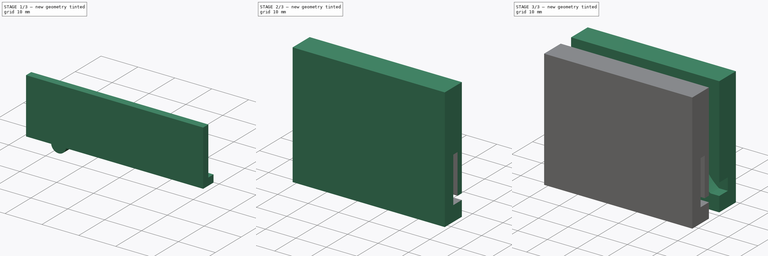
[diagram: build sequence overview — one tinted view per stage of 3, left to right]
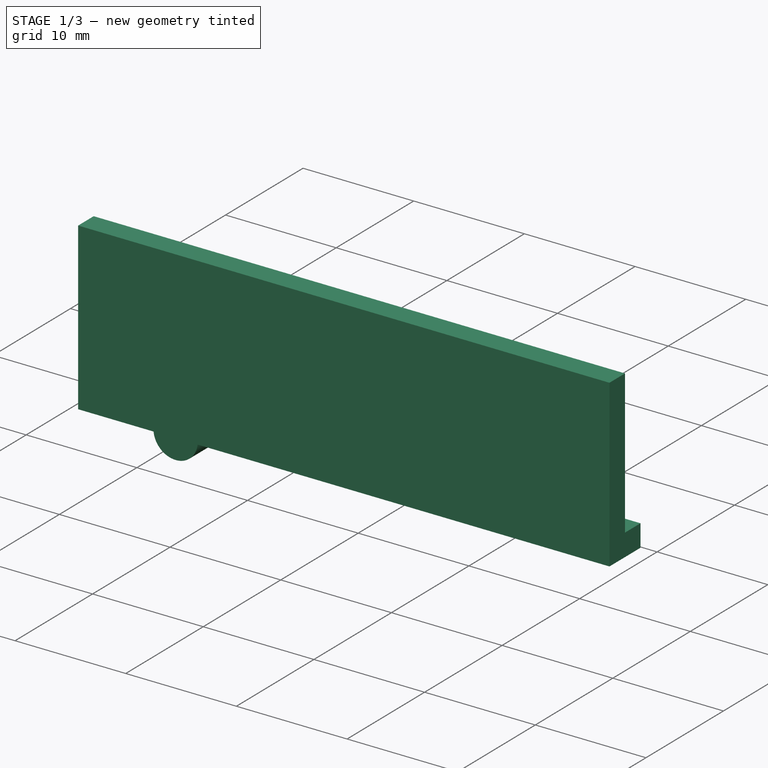
[diagram: stage 1 of 3 — iso view after this stage's code; geometry added in this stage tinted green]
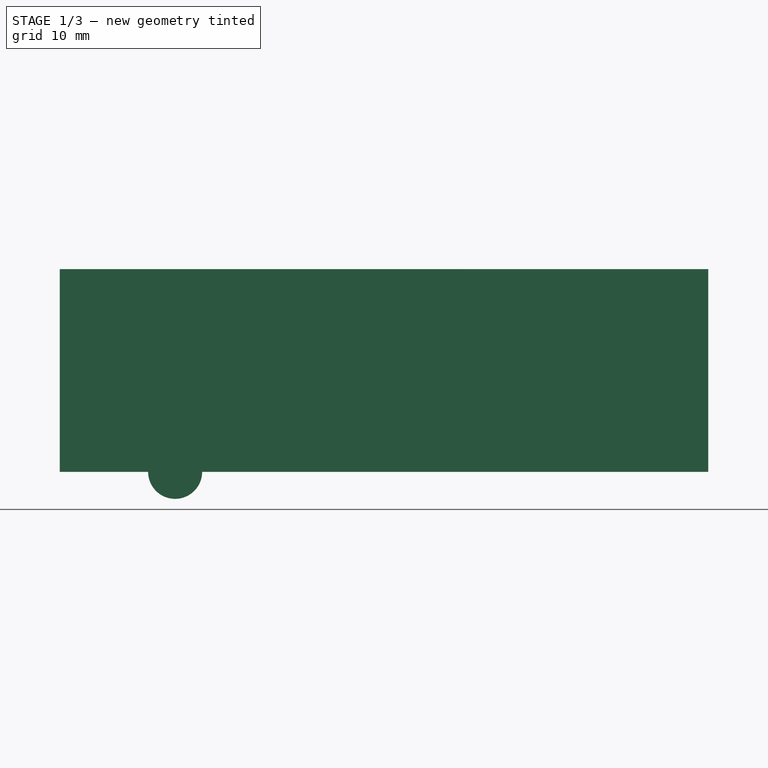
[diagram: stage 1 of 3 — front view after this stage's code; geometry added in this stage tinted green]
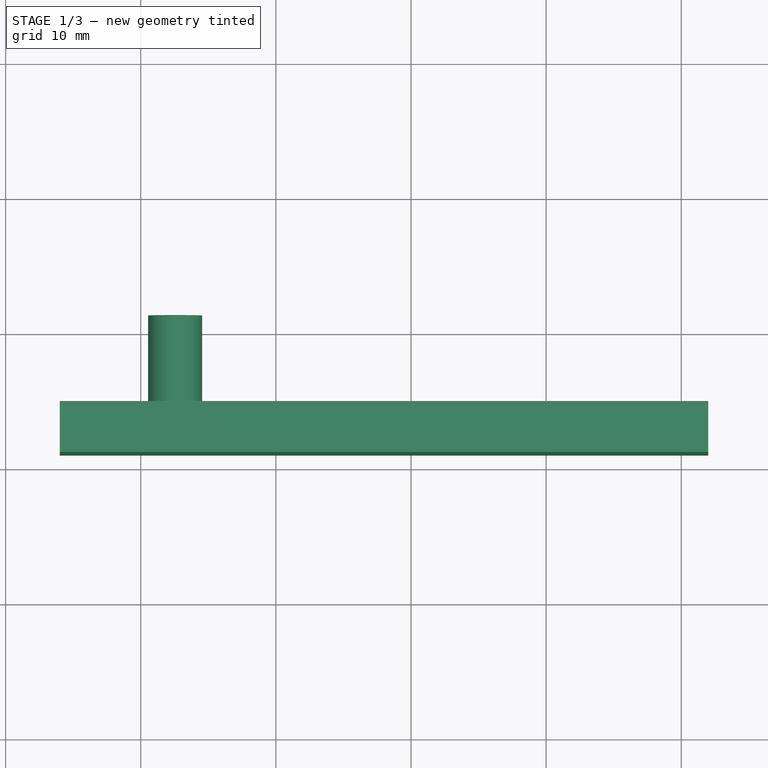
[diagram: stage 1 of 3 — top view after this stage's code; geometry added in this stage tinted green]
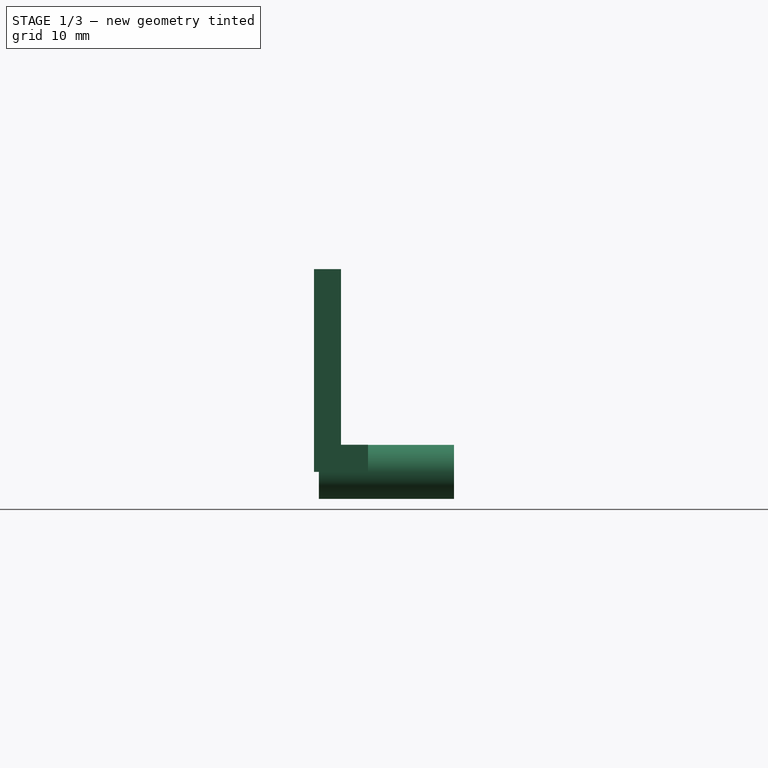
[diagram: stage 1 of 3 — right view after this stage's code; geometry added in this stage tinted green]
FCSTD DOCUMENT  (FreeCAD 0.14R$WCREV$)
Label: track
License: CC-BY 3.0
LicenseURL: http://creativecommons.org/licenses/by/3.0/
objects: Part::Feature×5, Sketcher::SketchObject×2, Part::Cut×2, Part::Sweep×1, Part::Box×1, Part::FeaturePython×1, Part::Extrusion×1, Part::Cylinder×1
note: 14 computed .brp shape members not serialized (recipe doc carries the construction recipe); baked Part::Feature solids carry a one-line shape summary decoded from their .brp

FEATURE [Part::Feature] Part__Feature  label="Pad003"
  Placement = pos=(0,0,0) rot=(0,0,1;1.5708rad)
  shape: bbox 8 x 4 x 15 mm, 8 faces (baked)
FEATURE [Part::Feature] Face
  Placement = pos=(0,0,0) rot=(0,0,1;1.5708rad)
  shape: bbox 2e-07 x 4 x 15 mm, 1 faces, 0 solids (baked)
FEATURE [Part::Extrusion] Extrusion
  Base = -> Face
  Dir = (48,0,0)
  Solid = false
FEATURE [Part::Cylinder] Cylinder
  Angle = 360
  Height = 10
  Placement = pos=(12.542,1.36795,0) rot=(1,0,0;1.5708rad)
  Radius = 2
FEATURE [Part::Feature] Part__Feature002  label="Array"
  Placement = pos=(11.6696,-8,0) rot=(0,0,1;1.5708rad)
  shape: bbox 29 x 19.75 x 77.3 mm, 33 faces (baked)
FEATURE [Part::Feature] Part__Feature003  label="Fusion"
  Placement = pos=(17,0,7) rot=(0,0,1;1.5708rad)
  shape: bbox 8 x 12.05 x 53.46 mm, 42 faces (baked)
FEATURE [Part::Feature] Part__Feature004  label="Array001"
  Placement = pos=(29,-8,0) rot=(0,0,1;1.5708rad)
  shape: bbox 29 x 19.75 x 72.3 mm, 33 faces (baked)
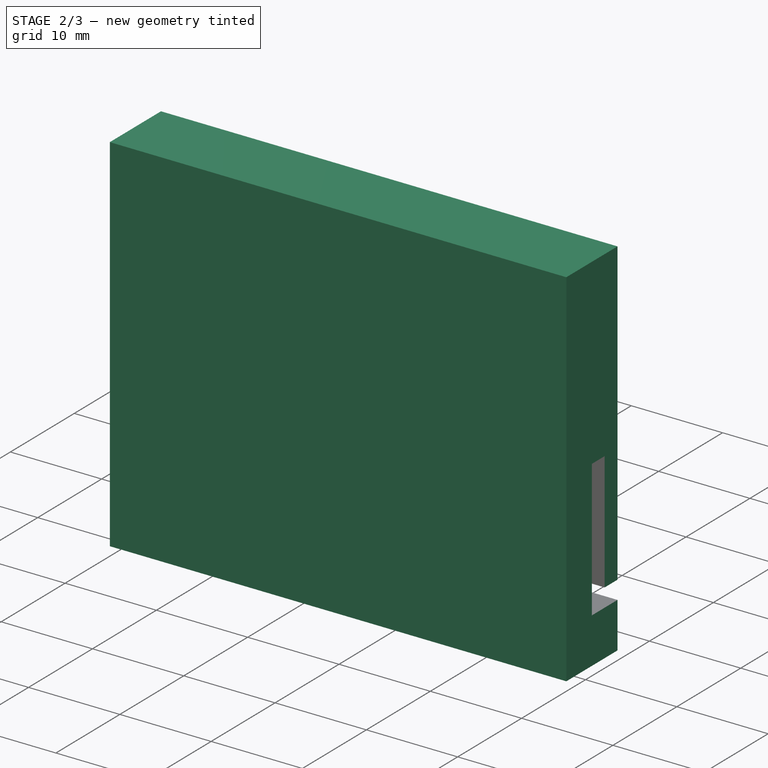
[diagram: stage 2 of 3 — iso view after this stage's code; geometry added in this stage tinted green]
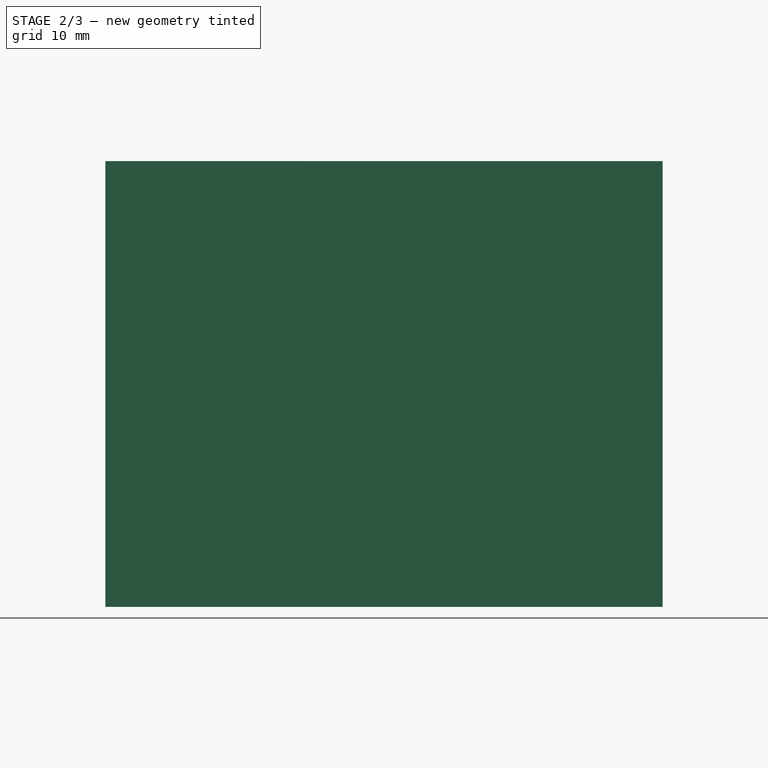
[diagram: stage 2 of 3 — front view after this stage's code; geometry added in this stage tinted green]
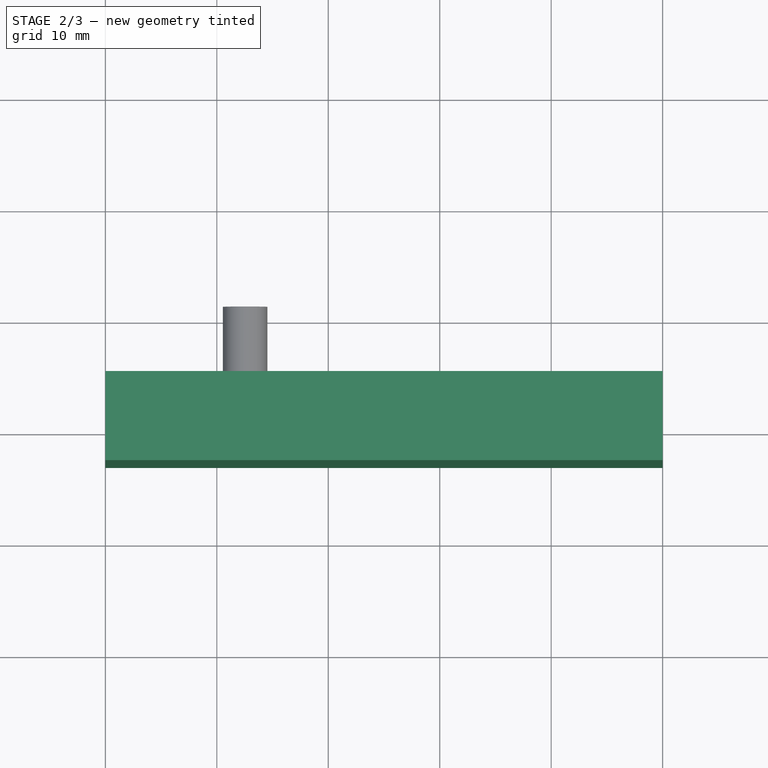
[diagram: stage 2 of 3 — top view after this stage's code; geometry added in this stage tinted green]
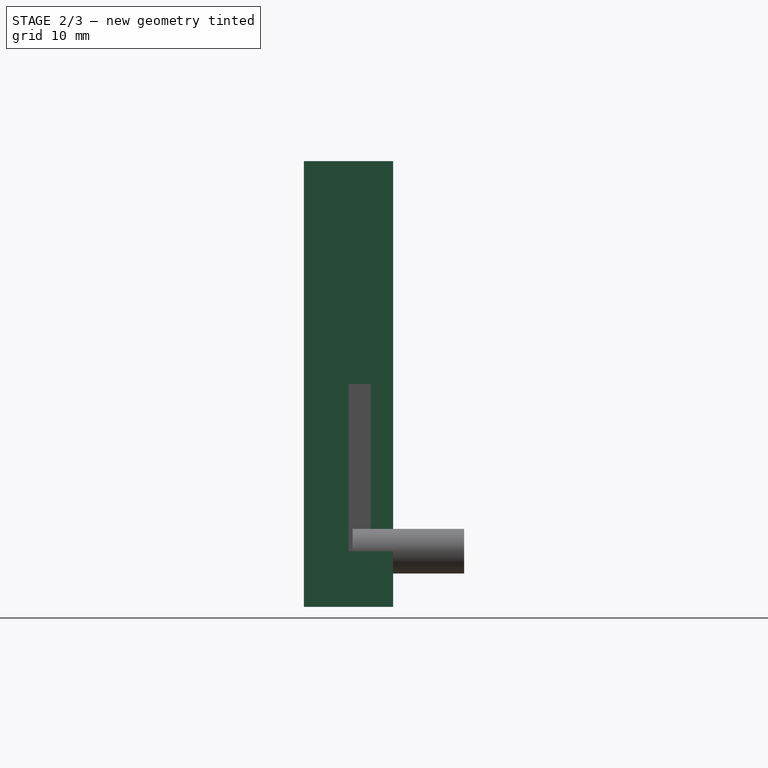
[diagram: stage 2 of 3 — right view after this stage's code; geometry added in this stage tinted green]
FEATURE [Part::Box] Box  label="Cube"
  Height = 40
  Length = 50
  Placement = pos=(0,0,-5) rot=(0,0,1;0rad)
  Width = 8
FEATURE [Part::FeaturePython] Clone  label="Clone of Cube"  # Draft clone (typed FeaturePython)
  Objects = -> [Box]
  Placement = pos=(0,-13,-5) rot=(0,0,1;0rad)
  Scale = (1,1,1)
FEATURE [Part::Cut] Cut001
  Base = -> Clone
  Tool = -> Extrusion
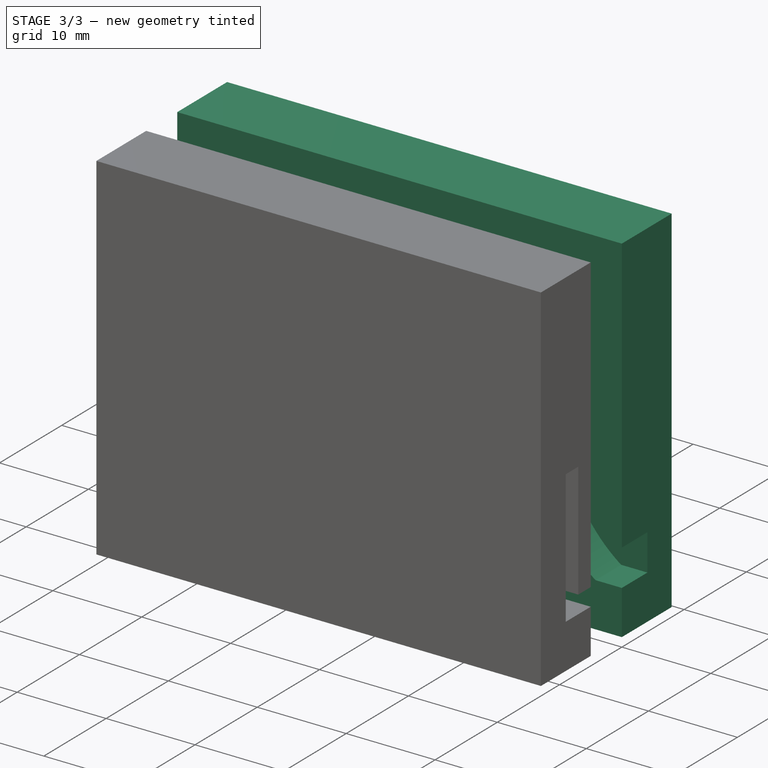
[diagram: stage 3 of 3 — iso view after this stage's code; geometry added in this stage tinted green]
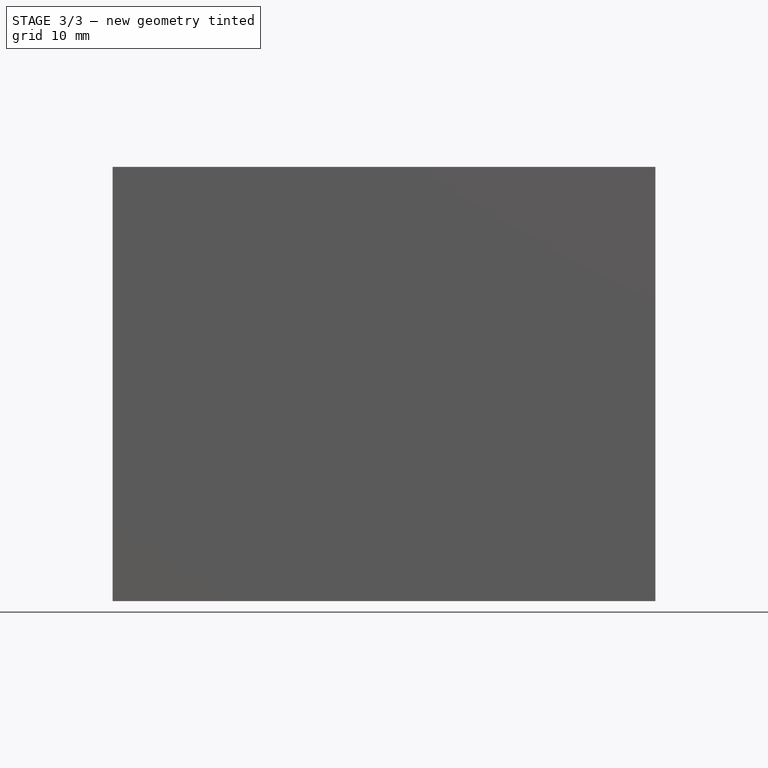
[diagram: stage 3 of 3 — front view after this stage's code; geometry added in this stage tinted green]
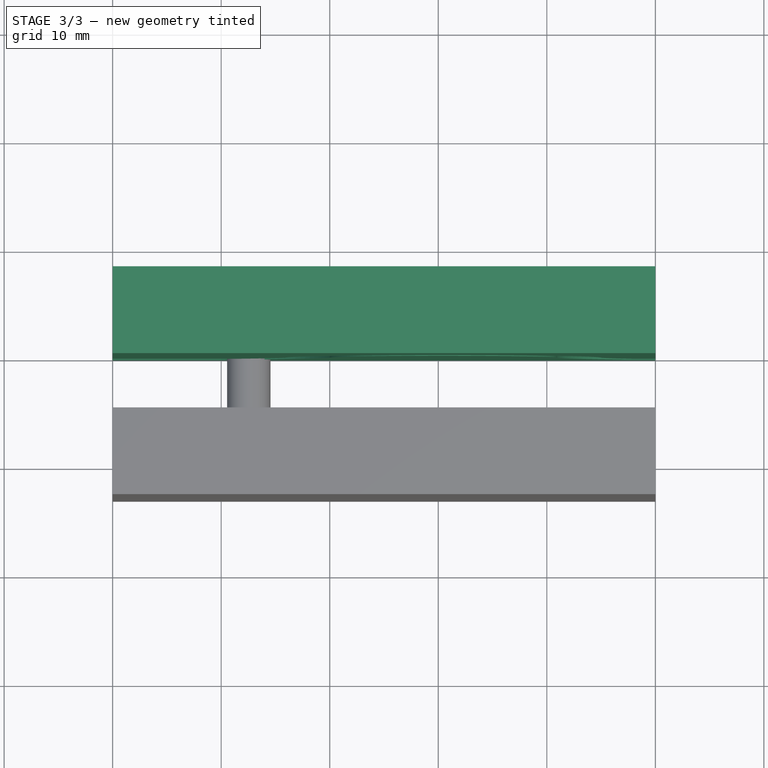
[diagram: stage 3 of 3 — top view after this stage's code; geometry added in this stage tinted green]
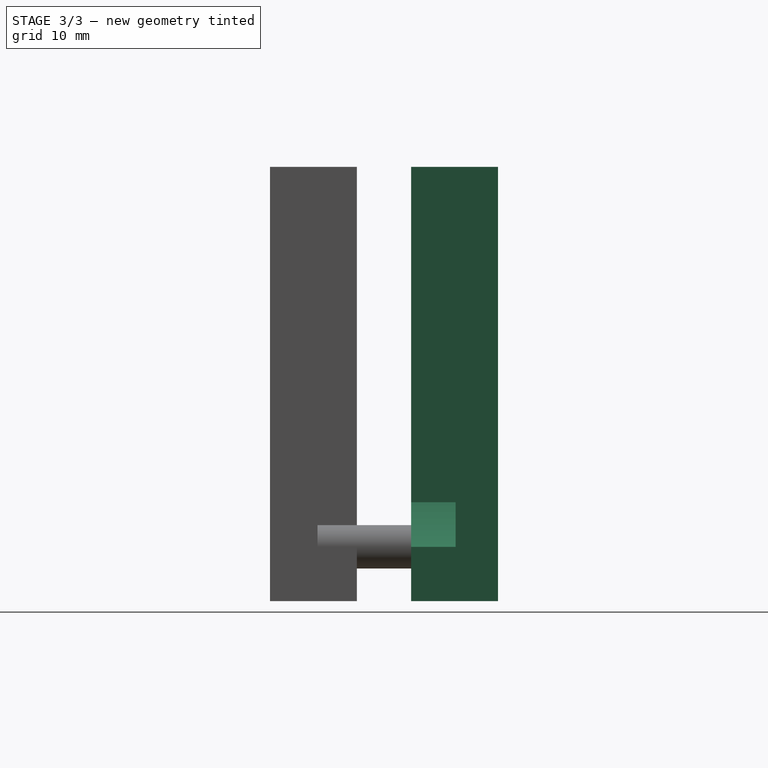
[diagram: stage 3 of 3 — right view after this stage's code; geometry added in this stage tinted green]
FEATURE [Sketcher::SketchObject] Sketch  label="Path"
  Placement = pos=(0,0,0) rot=(1,0,0;1.5708rad)
  sketch-geometry (5):
    g0: LineSegment StartX=0 StartY=0 StartZ=0 EndX=10 EndY=0 EndZ=0
    g1: LineSegment StartX=47.0491 StartY=0 StartZ=0 EndX=57.0491 EndY=0 EndZ=0
    g2: ArcOfCircle CenterX=5.64586 CenterY=14.3541 CenterZ=0 NormalX=0 NormalY=0 NormalZ=1 Radius=15 StartAngle=5.0069 EndAngle=5.98867
    g3: ArcOfCircle CenterX=55.7786 CenterY=12.1982 CenterZ=0 NormalX=0 NormalY=0 NormalZ=1 Radius=15 StartAngle=3.28867 EndAngle=4.09125
    g4: ArcOfCircle CenterX=30.4703 CenterY=10.1951 CenterZ=0 NormalX=0 NormalY=0 NormalZ=1 Radius=10.4721 StartAngle=6.26455 EndAngle=9.44341
  constraints (16):
    c: Horizontal(g0)
    c: Horizontal(g1)
    c: Coincident(g2,g0)
    c: Equal(g0,g1)
    c: Coincident(g3,g1)
    c: Coincident(g4,g2)
    c: Coincident(g3,g4)
    c: DistanceX(g0) = 10
    c: DistanceX(g0,g2) = 10
    c: Equal(g2,g3)
    c: Radius(g2) = 15
    c: DistanceY(g2,g3) = 0
    c: DistanceY(g0,g1) = 0
    c: DistanceY(g3,g1) = -10
    c: DistanceY(g-1,g0) = 0
    c: DistanceX(g-1,g0) = 0
FEATURE [Sketcher::SketchObject] Sketch001  label="pin-crossection"
  Placement = pos=(0,0,0) rot=(0.57735,0.57735,0.57735;2.0944rad)
  sketch-geometry (4):
    g0: LineSegment StartX=0 StartY=0 StartZ=0 EndX=4.1 EndY=0 EndZ=0
    g1: LineSegment StartX=4.1 StartY=0 StartZ=0 EndX=4.1 EndY=4.1 EndZ=0
    g2: LineSegment StartX=4.1 StartY=4.1 StartZ=0 EndX=0 EndY=4.1 EndZ=0
    g3: LineSegment StartX=0 StartY=4.1 StartZ=0 EndX=0 EndY=0 EndZ=0
  constraints (12):
    c: Coincident(g0,g1)
    c: Coincident(g1,g2)
    c: Coincident(g2,g3)
    c: Coincident(g3,g0)
    c: Horizontal(g0)
    c: Horizontal(g2)
    c: Vertical(g1)
    c: Vertical(g3)
    c: DistanceX(g0) = 4.1
    c: DistanceY(g1) = 4.1
    c: DistanceY(g-1,g0) = 0
    c: DistanceX(g-1,g0) = 0
FEATURE [Part::Sweep] Sweep
  Frenet = false
  Sections = -> [Sketch001]
  Solid = true
  Spine = -> Sketch [Edge1,Edge2,Edge3,Edge4,Edge5]
  Transition = 1
FEATURE [Part::Cut] Cut
  Base = -> Box
  Tool = -> Sweep
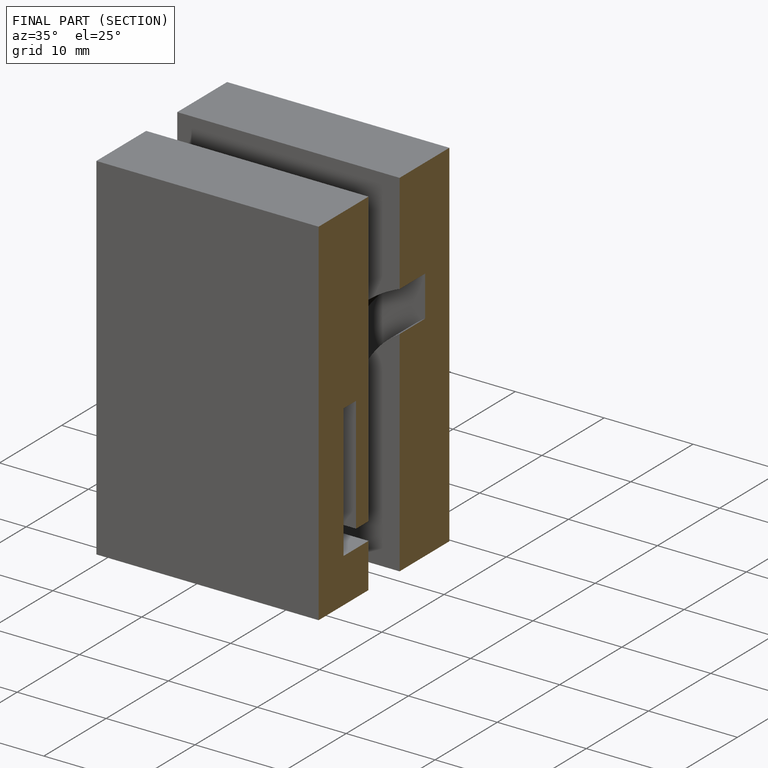
[diagram: finished part — half-section view (interior)]
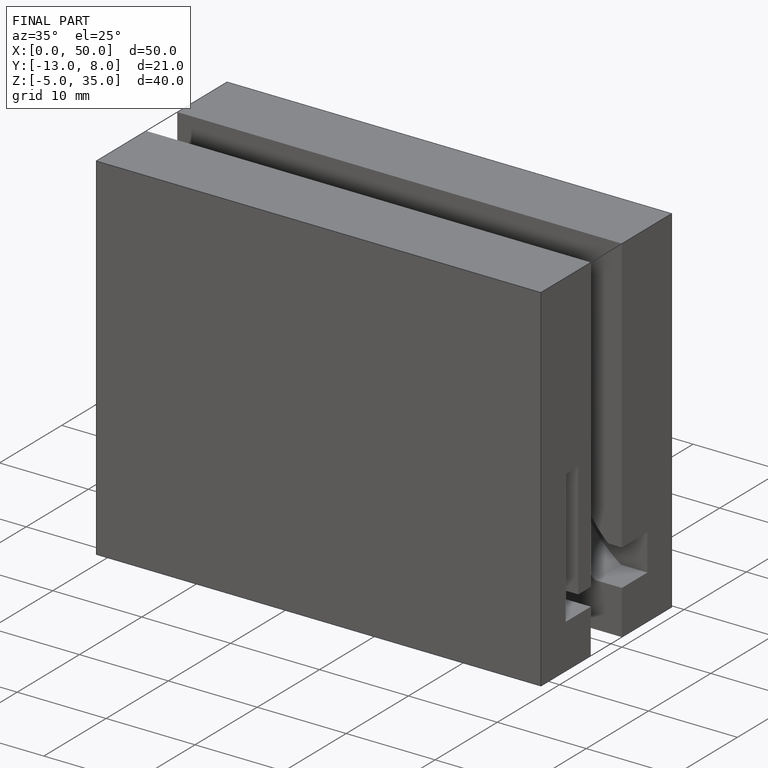
[diagram: finished part — iso view with bounding-box wireframe]
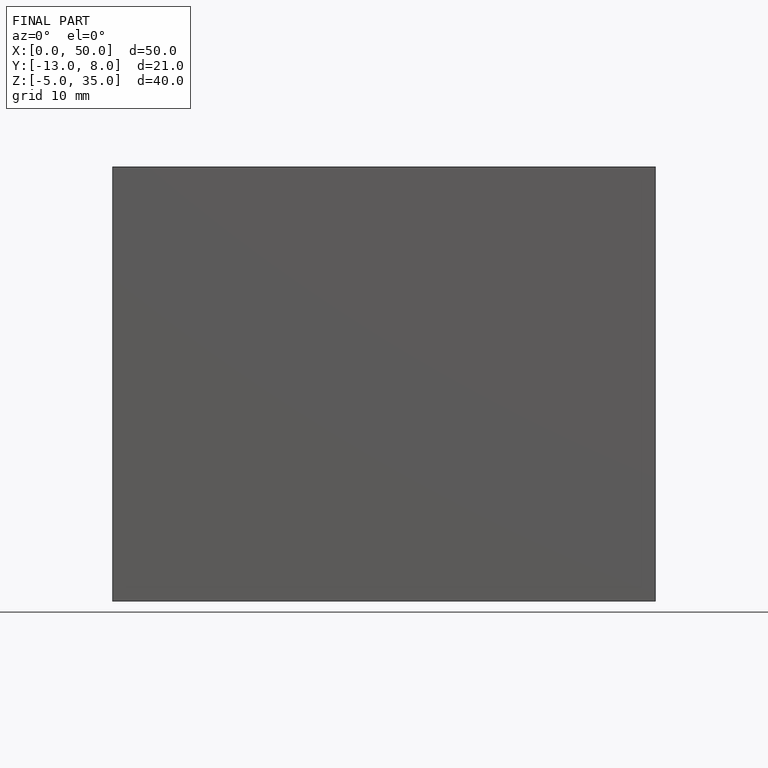
[diagram: finished part — front view with bounding-box wireframe]
